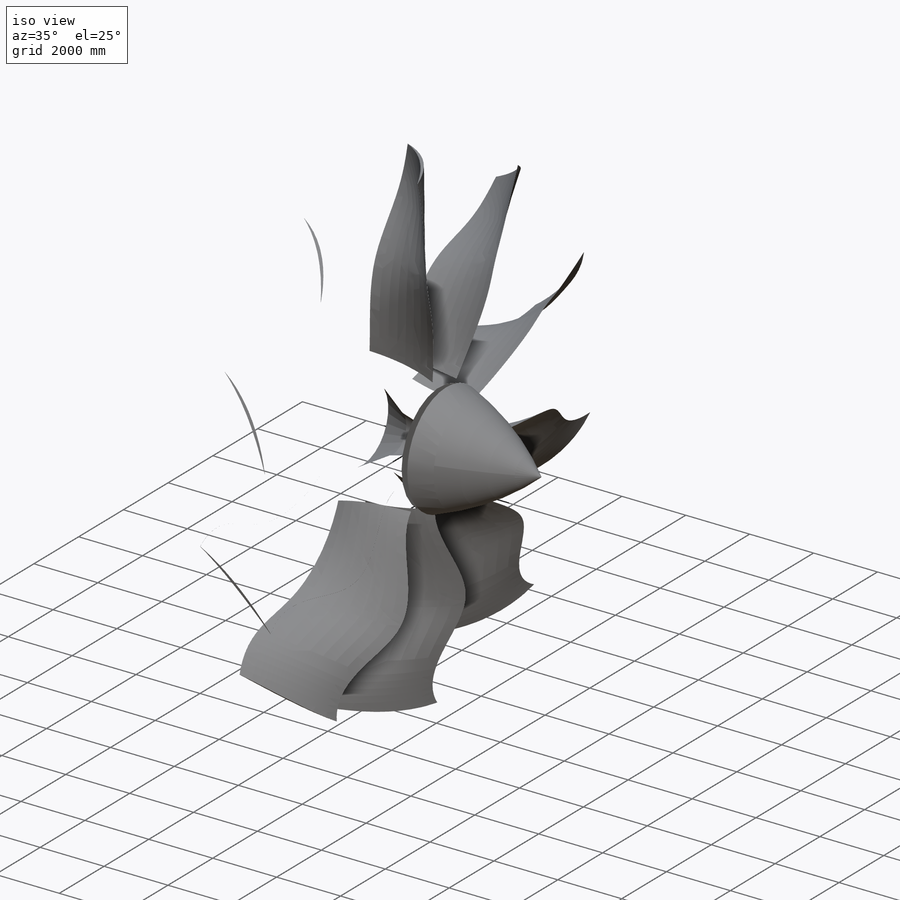
[diagram: iso view]
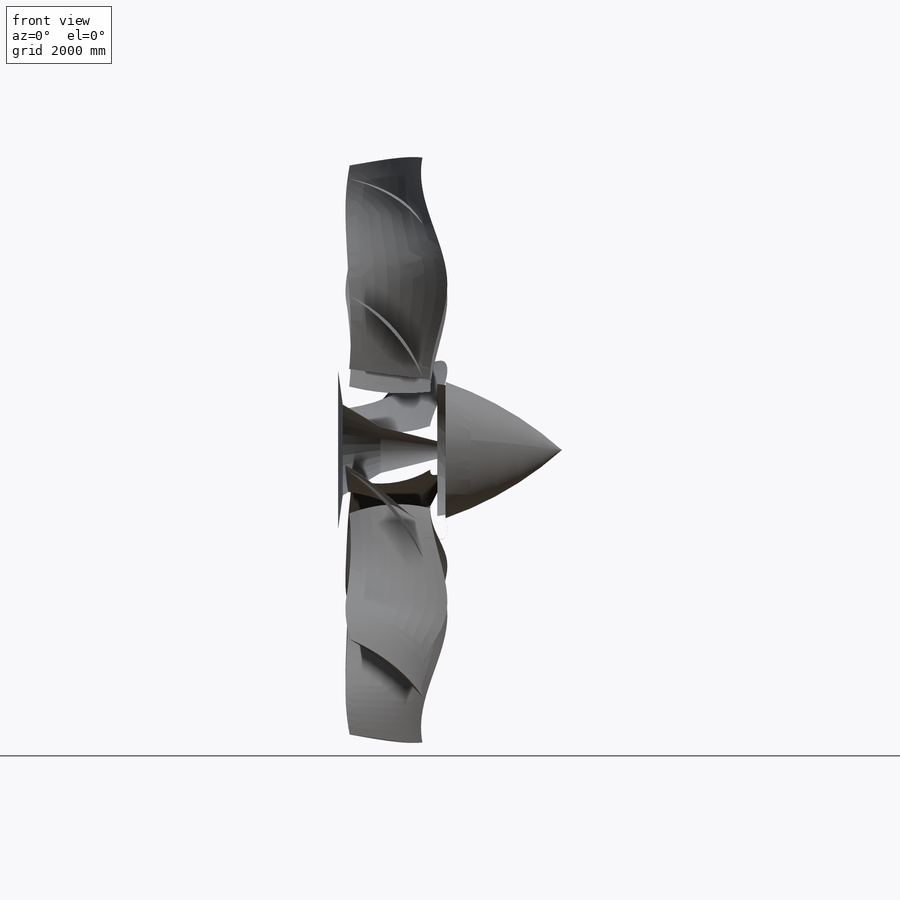
[diagram: front view]
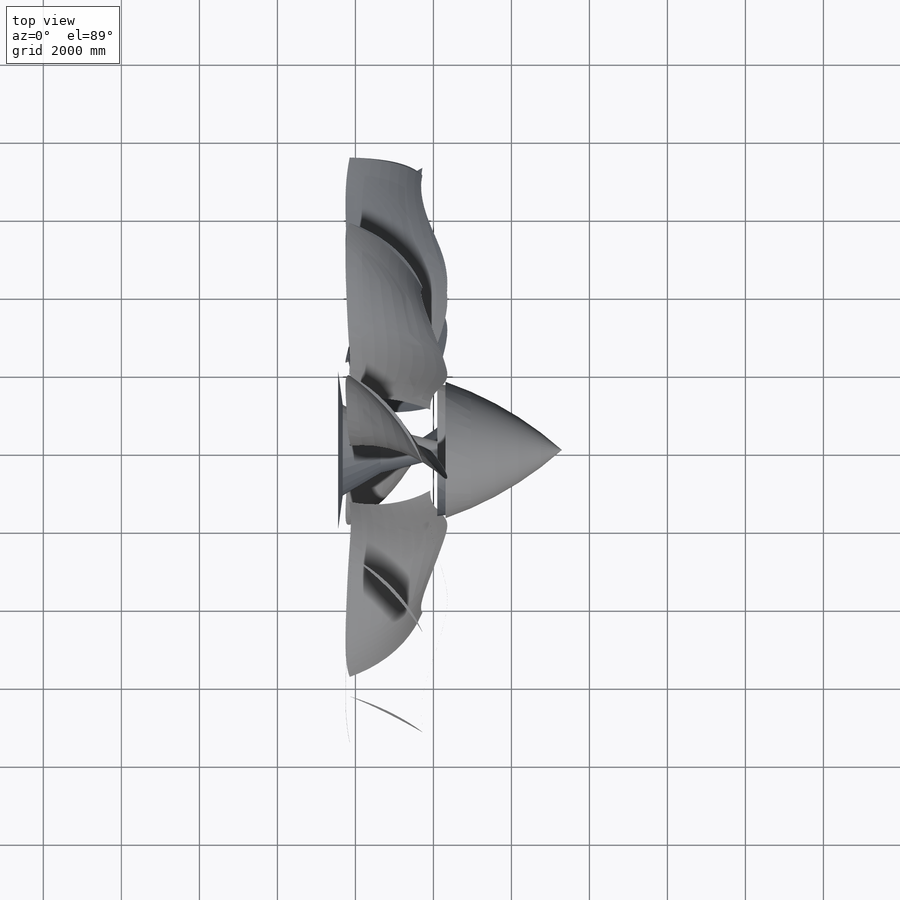
[diagram: top view]
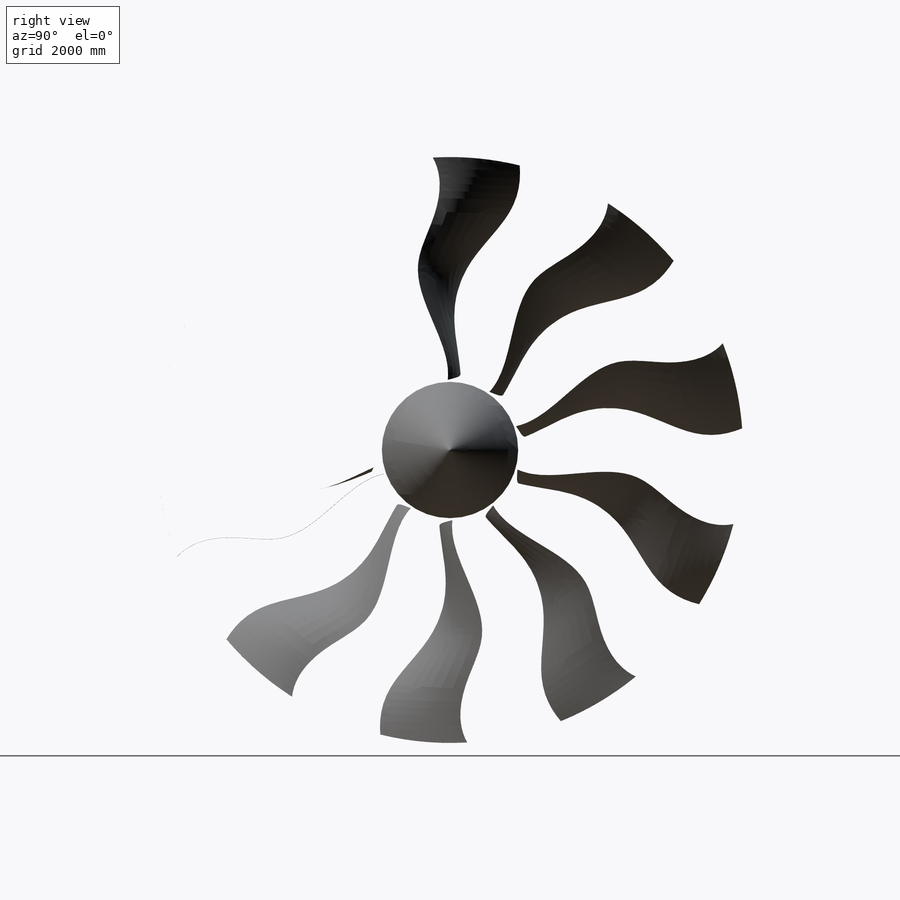
[diagram: right view]
SOLIDWORKS PART (.sldprt)
format: sldprt  version: not decoded by parser v0  size: 1,185,280 bytes
history: native  units: mm
features: sketch x12, cut_revolve x3, surface_op x2, plane x2, revolve x2, material x1, fillet x1, pattern_circular x1 (+11 scaffold rows collapsed)
feature tree (35):
  scaffold x11  (default folders/planes/origin — collapsed)
  material  "Material <not specified>"
  sketch  "Sketch1"  dims[D1=3800.0mm]
  sketch  "Sketch3"  dims[D1=1750.0mm D2=80.0mm D3=3621.0mm D4=600.0mm D5=4761.0mm D6=852.0mm D7=5996.0mm D8=454.0mm D9=7161.0mm D10=351.0mm D11=7714.0mm D12=644.0mm]
  sketch  "Sketch4"  dims[c1.D10=~3597.557167mm c1.D11=~3597.557167mm c1.D1=1450.0mm c1.D2=4108.0mm c1.D3=4636.0mm c1.D4=5941.0mm c1.D5=7714.0mm c1.D6=156.0mm c1.D7=206.0mm c1.D8=432.0mm c1.D9=1450.0mm c2.D10=~801.23545mm c3.D10=~128.815886deg c4.D10=1752.0mm]
  sketch  "Sketch5"  dims[D1=1750.0mm D2=2975.0mm D3=4255.0mm D4=6551.0mm D5=7774.0mm D6=100.0mm D7=150.0mm D8=393.0mm D9=230.0mm D10=191.0mm]
  sketch  "Sketch6"  dims[D1=1750.0mm D2=3967.0mm D3=5495.0mm D4=7839.0mm D5=2235.0mm D6=2200.0mm D7=2300.0mm D8=2050.0mm]
  surface_op  "Surface-Extrude1"
  surface_op  "Surface-Extrude2"
  plane  "Plane1"
  sketch  "Sketch7"
  plane  "Plane2"
  sketch  "Sketch8"
  sketch  "Sketch11"  dims[D1=7510.0mm]
  cut_revolve  "Cut-Revolve1"  Angle=360deg
  sketch  "Sketch12"  dims[c1.D1=0.0mm c1.D2=0.0mm c2.D1=80.0mm]
  revolve  "Revolve3"  Angle=360deg
  fillet  "Fillet1"  Radius=3mm
  pattern_circular  "CirPattern2"  Count=10 Angle=360deg
  sketch  "Sketch14"  dims[D1=0.0mm]
  cut_revolve  "Cut-Revolve2"  Angle=360deg
  sketch  "Sketch16"  dims[D1=7510.0mm]
  cut_revolve  "Cut-Revolve3"  Angle=360deg
  sketch  "Sketch17"  dims[D1=50.0mm D2=50.0mm]
  revolve  "Revolve5"  Angle=360deg
decode coverage: 17 of 21 modeling features carry decoded parameters
note: ~ marks probable driven/reference dimensions
note: suppression state not decoded; provenance and decode notes live in map.json
